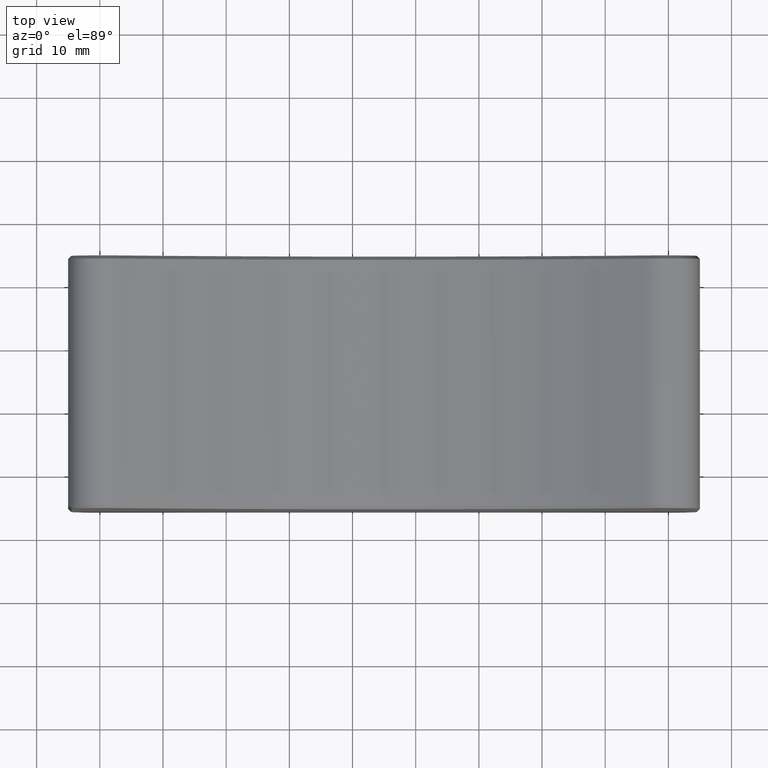
[diagram: clean part render]
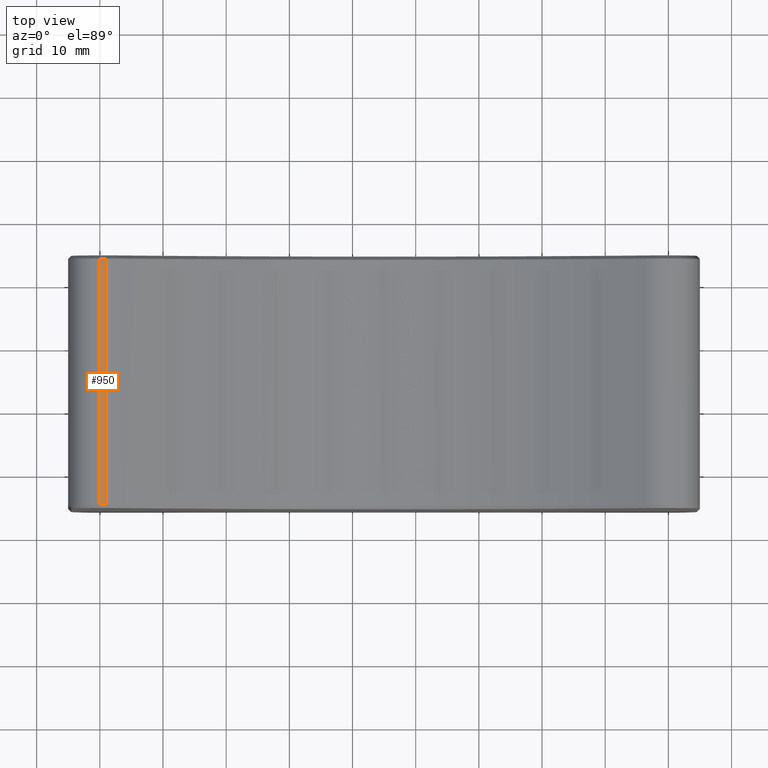
[diagram: same view with one face highlighted and labeled with its STEP entity id]
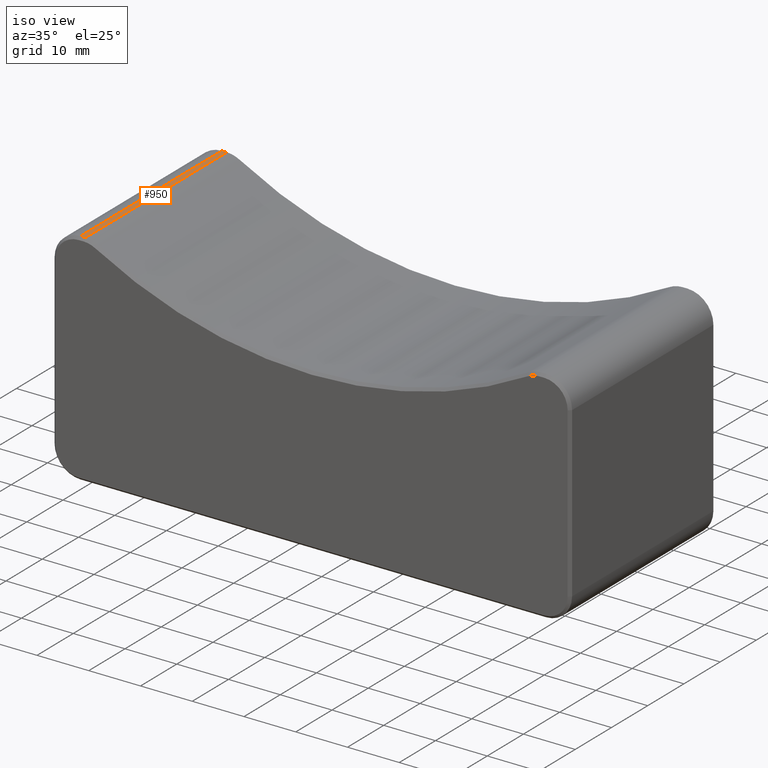
[diagram: same view with one face highlighted and labeled with its STEP entity id]
A machine part, top view. The second image highlights one B-rep face of the part: STEP entity #950.
A second angle (iso view) of the same face is appended — the face is thin or edge-on in the first view.
In plain terms, the highlighted planar face has unit normal (0, 0, 1).
Its self-contained STEP definition (entity closure, byte-faithful):
#62=PLANE('',#1115);
#122=FACE_OUTER_BOUND('',#189,.T.);
#189=EDGE_LOOP('',(#838,#839,#840,#841));
#231=LINE('',#1637,#297);
#254=LINE('',#1710,#320);
#255=LINE('',#1713,#321);
#256=LINE('',#1714,#322);
#297=VECTOR('',#1335,0.9801180785936);
#320=VECTOR('',#1416,39.00000000203);
#321=VECTOR('',#1419,0.9801180785936);
#322=VECTOR('',#1420,39.00000000091);
#458=VERTEX_POINT('',#1632);
#459=VERTEX_POINT('',#1636);
#480=VERTEX_POINT('',#1708);
#481=VERTEX_POINT('',#1712);
#566=EDGE_CURVE('',#458,#459,#231,.T.);
#603=EDGE_CURVE('',#458,#480,#254,.T.);
#604=EDGE_CURVE('',#481,#480,#255,.T.);
#605=EDGE_CURVE('',#481,#459,#256,.T.);
#838=ORIENTED_EDGE('',*,*,#566,.F.);
#839=ORIENTED_EDGE('',*,*,#603,.T.);
#840=ORIENTED_EDGE('',*,*,#604,.F.);
#841=ORIENTED_EDGE('',*,*,#605,.T.);
#950=ADVANCED_FACE('',(#122),#62,.T.);
#1115=AXIS2_PLACEMENT_3D('',#1711,#1417,#1418);
#1335=DIRECTION('',(1.,-5.711132913777E-10,5.711096665964E-10));
#1416=DIRECTION('',(0.,-1.,0.));
#1417=DIRECTION('center_axis',(0.,0.,1.));
#1418=DIRECTION('ref_axis',(1.,0.,0.));
#1419=DIRECTION('',(-1.,-5.711194081962E-10,-5.711132913778E-10));
#1420=DIRECTION('',(0.,1.,0.));
#1632=CARTESIAN_POINT('',(-44.9999999663191,39.5000000007013,26.4999999992988));
#1636=CARTESIAN_POINT('',(-44.01988188772,39.50000000046,26.49999999954));
#1637=CARTESIAN_POINT('',(-44.99999996632,39.50000000102,26.49999999898));
#1708=CARTESIAN_POINT('',(-44.9999999668445,0.49999999946583,26.499999999342));
#1710=CARTESIAN_POINT('',(-44.99999996632,39.50000000102,26.49999999898));
#1711=CARTESIAN_POINT('Origin',(-50.,0.,26.5));
#1712=CARTESIAN_POINT('',(-44.0198818867241,0.499999999768652,26.4999999997066));
#1713=CARTESIAN_POINT('',(-44.01988188772,0.4999999995435,26.49999999954));
#1714=CARTESIAN_POINT('',(-44.01988188772,0.4999999995435,26.49999999954));